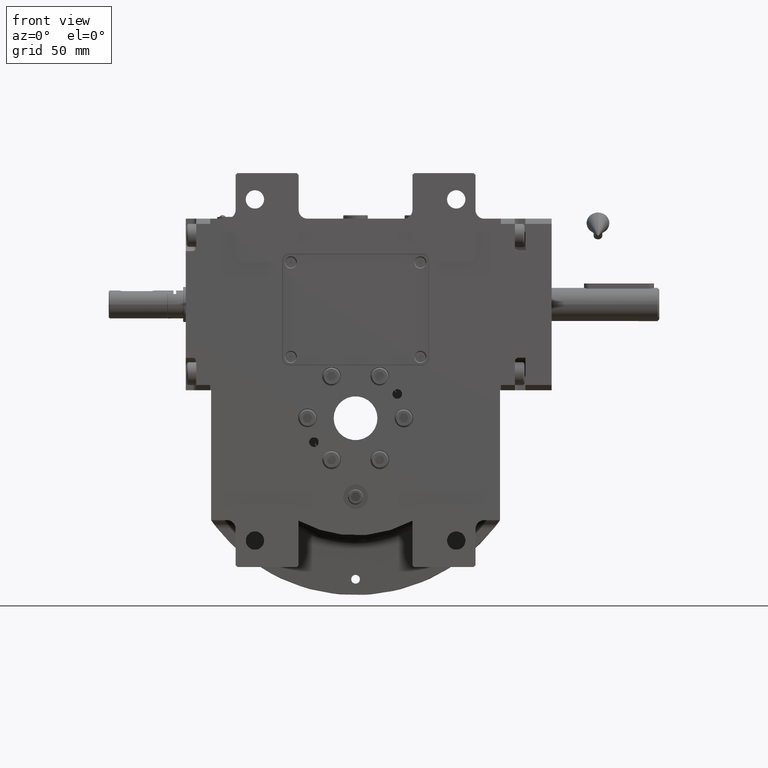
[diagram: clean part render]
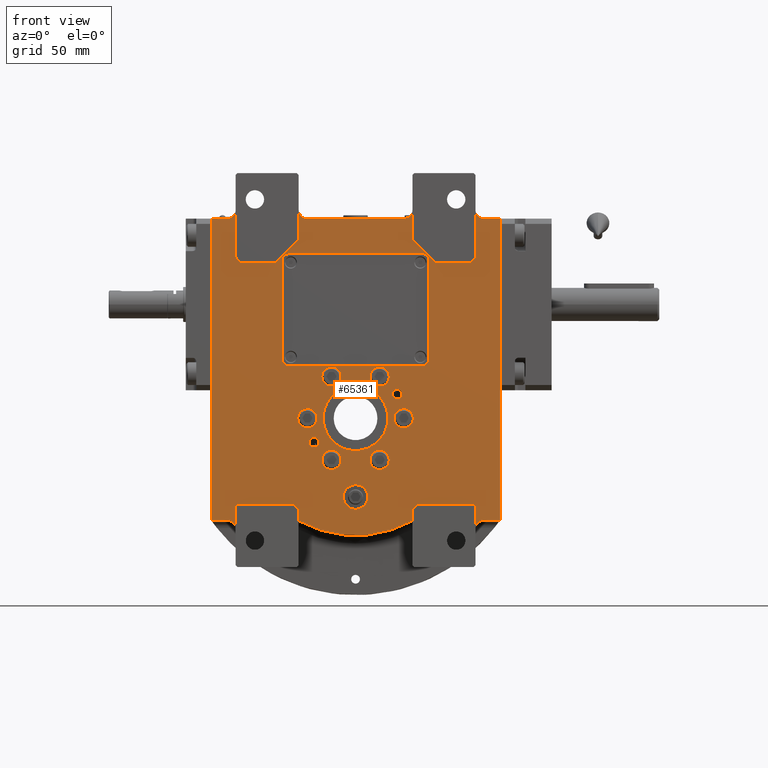
[diagram: same view with one face highlighted and labeled with its STEP entity id]
A machine part, front view. The second image highlights one B-rep face of the part: STEP entity #65361.
In plain terms, the highlighted planar face has unit normal (0, 1, 0).
Its self-contained STEP definition (entity closure, byte-faithful):
#249 = CARTESIAN_POINT ( 'NONE',  ( 68.50000000000000000, -40.50000000000000000, 92.00000000000000000 ) ) ;
#331 = EDGE_CURVE ( 'NONE', #63495, #59903, #56900, .T. ) ;
#789 = CIRCLE ( 'NONE', #65674, 2.749999999999999112 ) ;
#828 = CIRCLE ( 'NONE', #66918, 4.000000000000003553 ) ;
#1184 = ORIENTED_EDGE ( 'NONE', *, *, #65223, .F. ) ;
#1404 = DIRECTION ( 'NONE',  ( 1.387778780781444492E-15, 0.000000000000000000, -1.000000000000000000 ) ) ;
#1618 = ORIENTED_EDGE ( 'NONE', *, *, #6298, .F. ) ;
#1830 = VECTOR ( 'NONE', #69541, 1000.000000000000000 ) ;
#1865 = DIRECTION ( 'NONE',  ( 0.000000000000000000, -1.000000000000000000, 0.000000000000000000 ) ) ;
#2083 = CARTESIAN_POINT ( 'NONE',  ( -32.49999999999934630, -40.50000000000000000, 102.0000000000000000 ) ) ;
#2162 = DIRECTION ( 'NONE',  ( 0.000000000000000000, -1.000000000000000000, 0.000000000000000000 ) ) ;
#2490 = EDGE_CURVE ( 'NONE', #18760, #56068, #5420, .T. ) ;
#2587 = CARTESIAN_POINT ( 'NONE',  ( 32.50000000000000000, -40.50000000000000000, -52.00000000000000000 ) ) ;
#2661 = EDGE_CURVE ( 'NONE', #55045, #7672, #37387, .T. ) ;
#2682 = DIRECTION ( 'NONE',  ( 1.000000000000000000, 0.000000000000000000, 0.000000000000000000 ) ) ;
#2688 = LINE ( 'NONE', #42247, #1830 ) ;
#2777 = CARTESIAN_POINT ( 'NONE',  ( -67.50000000000000000, -40.50000000000000000, -49.00000000000000000 ) ) ;
#2794 = VECTOR ( 'NONE', #8447, 1000.000000000000000 ) ;
#2860 = VERTEX_POINT ( 'NONE', #55471 ) ;
#2961 = CIRCLE ( 'NONE', #20711, 5.500000000000000000 ) ;
#3035 = DIRECTION ( 'NONE',  ( 1.000000000000000000, 0.000000000000000000, 0.000000000000000000 ) ) ;
#3053 = CARTESIAN_POINT ( 'NONE',  ( 23.81569860407205397, -40.50000000000000000, 13.75000000000000000 ) ) ;
#3243 = ORIENTED_EDGE ( 'NONE', *, *, #28140, .T. ) ;
#3444 = CIRCLE ( 'NONE', #63569, 5.000000000000004441 ) ;
#3513 = EDGE_CURVE ( 'NONE', #39877, #10199, #828, .T. ) ;
#3596 = DIRECTION ( 'NONE',  ( 1.000000000000000000, 0.000000000000000000, 0.000000000000000000 ) ) ;
#3610 = CARTESIAN_POINT ( 'NONE',  ( 27.50000000000000000, -40.50000000000000000, -8.881784197001250351E-16 ) ) ;
#3916 = ORIENTED_EDGE ( 'NONE', *, *, #3513, .F. ) ;
#3937 = FACE_BOUND ( 'NONE', #22070, .T. ) ;
#4096 = DIRECTION ( 'NONE',  ( 0.7071067811865474617, 0.000000000000000000, 0.7071067811865474617 ) ) ;
#4146 = CIRCLE ( 'NONE', #13550, 5.500000000000000000 ) ;
#4384 = EDGE_CURVE ( 'NONE', #55318, #62827, #36269, .T. ) ;
#4483 = LINE ( 'NONE', #49558, #35804 ) ;
#4546 = LINE ( 'NONE', #55872, #60930 ) ;
#4555 = CARTESIAN_POINT ( 'NONE',  ( 73.50000000000000000, -40.50000000000000000, 114.0000000000000000 ) ) ;
#4698 = DIRECTION ( 'NONE',  ( 0.000000000000000000, 0.000000000000000000, -1.000000000000000000 ) ) ;
#4887 = EDGE_CURVE ( 'NONE', #5832, #16790, #3444, .T. ) ;
#4951 = VECTOR ( 'NONE', #40234, 1000.000000000000000 ) ;
#5042 = EDGE_CURVE ( 'NONE', #50472, #25782, #31727, .T. ) ;
#5327 = CARTESIAN_POINT ( 'NONE',  ( 27.50000000000000000, -40.50000000000000000, 8.881784197001250351E-16 ) ) ;
#5420 = CIRCLE ( 'NONE', #47885, 7.000000000000000000 ) ;
#5529 = CARTESIAN_POINT ( 'NONE',  ( 8.250000000000000000, -40.50000000000000000, 23.81569860407205397 ) ) ;
#5652 = ORIENTED_EDGE ( 'NONE', *, *, #40051, .T. ) ;
#5832 = VERTEX_POINT ( 'NONE', #56660 ) ;
#5953 = CARTESIAN_POINT ( 'NONE',  ( -32.49999999999934630, -40.50000000000000000, 102.0000000000000000 ) ) ;
#5958 = CARTESIAN_POINT ( 'NONE',  ( -13.75000000000000000, -40.50000000000000000, -23.81569860407205397 ) ) ;
#6051 = VECTOR ( 'NONE', #70390, 1000.000000000000000 ) ;
#6214 = ORIENTED_EDGE ( 'NONE', *, *, #52743, .T. ) ;
#6243 = EDGE_CURVE ( 'NONE', #49355, #43166, #39585, .T. ) ;
#6298 = EDGE_CURVE ( 'NONE', #6772, #16790, #56577, .T. ) ;
#6308 = ORIENTED_EDGE ( 'NONE', *, *, #32444, .F. ) ;
#6429 = DIRECTION ( 'NONE',  ( 0.000000000000000000, 0.000000000000000000, 1.000000000000000000 ) ) ;
#6474 = EDGE_CURVE ( 'NONE', #22342, #34705, #72526, .T. ) ;
#6772 = VERTEX_POINT ( 'NONE', #2083 ) ;
#6781 = DIRECTION ( 'NONE',  ( 0.7071067811865480168, 0.000000000000000000, 0.7071067811865470176 ) ) ;
#6788 = AXIS2_PLACEMENT_3D ( 'NONE', #30639, #47605, #70095 ) ;
#7024 = VERTEX_POINT ( 'NONE', #62510 ) ;
#7427 = AXIS2_PLACEMENT_3D ( 'NONE', #45004, #67517, #16938 ) ;
#7598 = ORIENTED_EDGE ( 'NONE', *, *, #29958, .F. ) ;
#7666 = CARTESIAN_POINT ( 'NONE',  ( -33.00000000000000000, -40.50000000000000000, 1.122594940296405870E-15 ) ) ;
#7672 = VERTEX_POINT ( 'NONE', #66363 ) ;
#7887 = ORIENTED_EDGE ( 'NONE', *, *, #38554, .F. ) ;
#8141 = DIRECTION ( 'NONE',  ( 0.000000000000000000, 1.000000000000000000, 0.000000000000000000 ) ) ;
#8332 = EDGE_CURVE ( 'NONE', #71831, #43996, #2688, .T. ) ;
#8363 = DIRECTION ( 'NONE',  ( 1.000000000000000000, 0.000000000000000000, -6.459479416000907016E-16 ) ) ;
#8403 = LINE ( 'NONE', #19524, #47118 ) ;
#8447 = DIRECTION ( 'NONE',  ( 1.000000000000000000, 0.000000000000000000, 0.000000000000000000 ) ) ;
#8454 = DIRECTION ( 'NONE',  ( -1.000000000000000000, 0.000000000000000000, 0.000000000000000000 ) ) ;
#8614 = LINE ( 'NONE', #54439, #37393 ) ;
#8716 = EDGE_CURVE ( 'NONE', #22308, #13100, #43178, .T. ) ;
#8718 = LINE ( 'NONE', #37547, #6051 ) ;
#8911 = DIRECTION ( 'NONE',  ( 1.000000000000000000, 0.000000000000000000, 0.000000000000000000 ) ) ;
#9142 = DIRECTION ( 'NONE',  ( 1.000000000000000000, 0.000000000000000000, 3.469446951953617344E-15 ) ) ;
#9145 = FACE_BOUND ( 'NONE', #48000, .T. ) ;
#9284 = ORIENTED_EDGE ( 'NONE', *, *, #63777, .F. ) ;
#9326 = VERTEX_POINT ( 'NONE', #14229 ) ;
#9355 = DIRECTION ( 'NONE',  ( 0.000000000000000000, 0.000000000000000000, 1.000000000000000000 ) ) ;
#9997 = ORIENTED_EDGE ( 'NONE', *, *, #43387, .F. ) ;
#10101 = VECTOR ( 'NONE', #32879, 1000.000000000000000 ) ;
#10142 = EDGE_CURVE ( 'NONE', #13100, #22308, #28672, .T. ) ;
#10199 = VERTEX_POINT ( 'NONE', #16709 ) ;
#10243 = CARTESIAN_POINT ( 'NONE',  ( 73.50000000000000000, -40.50000000000000000, 119.0000000000000000 ) ) ;
#10290 = ORIENTED_EDGE ( 'NONE', *, *, #59750, .F. ) ;
#10292 = VERTEX_POINT ( 'NONE', #41431 ) ;
#10535 = AXIS2_PLACEMENT_3D ( 'NONE', #71866, #64932, #3596 ) ;
#10851 = CIRCLE ( 'NONE', #14417, 5.000000000000000888 ) ;
#11159 = VECTOR ( 'NONE', #55265, 1000.000000000000000 ) ;
#11315 = CARTESIAN_POINT ( 'NONE',  ( -27.50000000000000000, -40.50000000000000000, 3.552713678800499352E-15 ) ) ;
#11334 = DIRECTION ( 'NONE',  ( 0.000000000000000000, -1.000000000000000000, 0.000000000000000000 ) ) ;
#11632 = CARTESIAN_POINT ( 'NONE',  ( 26.56569860407205041, -40.50000000000000000, 13.75000000000000000 ) ) ;
#12184 = CARTESIAN_POINT ( 'NONE',  ( 67.50000000000000000, -40.50000000000000000, -49.00000000000000000 ) ) ;
#12261 = ORIENTED_EDGE ( 'NONE', *, *, #49393, .F. ) ;
#12300 = LINE ( 'NONE', #12688, #13351 ) ;
#12340 = EDGE_CURVE ( 'NONE', #42860, #30431, #65602, .T. ) ;
#12438 = AXIS2_PLACEMENT_3D ( 'NONE', #68089, #17527, #40042 ) ;
#12511 = AXIS2_PLACEMENT_3D ( 'NONE', #49798, #61219, #22127 ) ;
#12688 = CARTESIAN_POINT ( 'NONE',  ( -45.49999999999939604, -40.50000000000000000, 89.00000000000000000 ) ) ;
#12797 = CARTESIAN_POINT ( 'NONE',  ( -18.50000000000000000, -40.50000000000000000, 1.581837489976665042E-15 ) ) ;
#12840 = DIRECTION ( 'NONE',  ( -1.734723475976807094E-15, 0.000000000000000000, -1.000000000000000000 ) ) ;
#12847 = EDGE_CURVE ( 'NONE', #40174, #20671, #2961, .T. ) ;
#12918 = ORIENTED_EDGE ( 'NONE', *, *, #32213, .F. ) ;
#13100 = VERTEX_POINT ( 'NONE', #25495 ) ;
#13164 = EDGE_CURVE ( 'NONE', #70912, #46210, #14892, .T. ) ;
#13255 = EDGE_CURVE ( 'NONE', #56068, #18760, #44379, .T. ) ;
#13272 = ORIENTED_EDGE ( 'NONE', *, *, #55995, .F. ) ;
#13351 = VECTOR ( 'NONE', #6781, 1000.000000000000000 ) ;
#13520 = EDGE_CURVE ( 'NONE', #47813, #9326, #8718, .T. ) ;
#13550 = AXIS2_PLACEMENT_3D ( 'NONE', #27865, #48932, #50396 ) ;
#14052 = LINE ( 'NONE', #47318, #18937 ) ;
#14229 = CARTESIAN_POINT ( 'NONE',  ( 82.50000000000000000, -40.50000000000000000, -58.26448317800490173 ) ) ;
#14417 = AXIS2_PLACEMENT_3D ( 'NONE', #52945, #19701, #47037 ) ;
#14743 = CARTESIAN_POINT ( 'NONE',  ( 42.00000000000000000, -40.50000000000000000, 34.00000000000000000 ) ) ;
#14892 = CIRCLE ( 'NONE', #16111, 3.999999999999996447 ) ;
#15592 = CARTESIAN_POINT ( 'NONE',  ( -68.50000000000000000, -40.50000000000000000, -50.00000000000000000 ) ) ;
#15666 = EDGE_CURVE ( 'NONE', #19869, #41108, #28760, .T. ) ;
#15787 = PLANE ( 'NONE',  #10535 ) ;
#15806 = CIRCLE ( 'NONE', #67707, 66.99999999999998579 ) ;
#15842 = DIRECTION ( 'NONE',  ( 1.000000000000000000, 0.000000000000000000, 0.000000000000000000 ) ) ;
#15874 = ORIENTED_EDGE ( 'NONE', *, *, #41151, .T. ) ;
#16033 = VERTEX_POINT ( 'NONE', #34128 ) ;
#16052 = VECTOR ( 'NONE', #47745, 1000.000000000000000 ) ;
#16111 = AXIS2_PLACEMENT_3D ( 'NONE', #20304, #59399, #48366 ) ;
#16188 = EDGE_CURVE ( 'NONE', #61700, #49589, #60271, .T. ) ;
#16197 = CARTESIAN_POINT ( 'NONE',  ( -26.56569860407205041, -40.50000000000000000, -13.75000000000000000 ) ) ;
#16338 = CARTESIAN_POINT ( 'NONE',  ( -32.50000000000000000, -40.50000000000000000, -52.00000000000000000 ) ) ;
#16709 = CARTESIAN_POINT ( 'NONE',  ( -42.00000000000000000, -40.50000000000000000, 90.00000000000000000 ) ) ;
#16723 = ORIENTED_EDGE ( 'NONE', *, *, #4887, .T. ) ;
#16790 = VERTEX_POINT ( 'NONE', #37307 ) ;
#16922 = EDGE_CURVE ( 'NONE', #25782, #39877, #39878, .T. ) ;
#16938 = DIRECTION ( 'NONE',  ( -1.000000000000000000, 0.000000000000000000, 0.000000000000000000 ) ) ;
#17327 = DIRECTION ( 'NONE',  ( 0.000000000000000000, -1.000000000000000000, 0.000000000000000000 ) ) ;
#17527 = DIRECTION ( 'NONE',  ( 0.000000000000000000, -1.000000000000000000, 0.000000000000000000 ) ) ;
#17615 = CARTESIAN_POINT ( 'NONE',  ( -73.50000000000000000, -40.50000000000000000, -58.26448317800490173 ) ) ;
#17917 = LINE ( 'NONE', #63324, #69074 ) ;
#17923 = EDGE_CURVE ( 'NONE', #29740, #50472, #14052, .T. ) ;
#17986 = LINE ( 'NONE', #52312, #61610 ) ;
#18366 = AXIS2_PLACEMENT_3D ( 'NONE', #41082, #8141, #69790 ) ;
#18373 = AXIS2_PLACEMENT_3D ( 'NONE', #71772, #21245, #66273 ) ;
#18401 = CARTESIAN_POINT ( 'NONE',  ( -68.50000000000000000, -40.50000000000000000, 92.00000000000000000 ) ) ;
#18731 = EDGE_CURVE ( 'NONE', #48662, #35455, #66152, .T. ) ;
#18760 = VERTEX_POINT ( 'NONE', #28693 ) ;
#18931 = VERTEX_POINT ( 'NONE', #12797 ) ;
#18937 = VECTOR ( 'NONE', #58755, 1000.000000000000000 ) ;
#19166 = DIRECTION ( 'NONE',  ( 1.000000000000000000, 0.000000000000000000, 0.000000000000000000 ) ) ;
#19318 = ORIENTED_EDGE ( 'NONE', *, *, #2490, .F. ) ;
#19524 = CARTESIAN_POINT ( 'NONE',  ( -35.50000000000000000, -40.50000000000000000, -49.00000000000000000 ) ) ;
#19587 = EDGE_LOOP ( 'NONE', ( #70898, #19318 ) ) ;
#19701 = DIRECTION ( 'NONE',  ( 0.000000000000000000, 1.000000000000000000, 0.000000000000000000 ) ) ;
#19712 = CARTESIAN_POINT ( 'NONE',  ( 21.06569860407205041, -40.50000000000000000, 13.75000000000000000 ) ) ;
#19744 = AXIS2_PLACEMENT_3D ( 'NONE', #69268, #43029, #21968 ) ;
#19869 = VERTEX_POINT ( 'NONE', #52612 ) ;
#19896 = ORIENTED_EDGE ( 'NONE', *, *, #36826, .F. ) ;
#19947 = LINE ( 'NONE', #24413, #2794 ) ;
#19980 = CARTESIAN_POINT ( 'NONE',  ( 67.50000000000000000, -40.50000000000000000, -49.00000000000000000 ) ) ;
#20253 = CARTESIAN_POINT ( 'NONE',  ( 38.00000000000000000, -40.50000000000000000, 90.00000000000000000 ) ) ;
#20257 = FACE_BOUND ( 'NONE', #46123, .T. ) ;
#20304 = CARTESIAN_POINT ( 'NONE',  ( -38.00000000000000000, -40.50000000000000000, 34.00000000000000000 ) ) ;
#20671 = VERTEX_POINT ( 'NONE', #5529 ) ;
#20710 = CARTESIAN_POINT ( 'NONE',  ( -1.065814103640149963E-14, -40.50000000000000000, -4.263256414560599853E-14 ) ) ;
#20711 = AXIS2_PLACEMENT_3D ( 'NONE', #39919, #56886, #33999 ) ;
#20974 = VERTEX_POINT ( 'NONE', #42441 ) ;
#21245 = DIRECTION ( 'NONE',  ( 0.000000000000000000, -1.000000000000000000, 0.000000000000000000 ) ) ;
#21495 = CARTESIAN_POINT ( 'NONE',  ( -68.50000000000000000, -40.50000000000000000, -50.00000000000000000 ) ) ;
#21764 = AXIS2_PLACEMENT_3D ( 'NONE', #67487, #11334, #32456 ) ;
#21779 = CARTESIAN_POINT ( 'NONE',  ( 8.250000000000000000, -40.50000000000000000, -23.81569860407205397 ) ) ;
#21968 = DIRECTION ( 'NONE',  ( 1.000000000000000000, 0.000000000000000000, -6.308085367188389255E-16 ) ) ;
#22070 = EDGE_LOOP ( 'NONE', ( #51061, #49528 ) ) ;
#22088 = ORIENTED_EDGE ( 'NONE', *, *, #13164, .F. ) ;
#22127 = DIRECTION ( 'NONE',  ( 1.000000000000000000, 0.000000000000000000, 0.000000000000000000 ) ) ;
#22261 = EDGE_CURVE ( 'NONE', #18931, #32991, #67699, .T. ) ;
#22262 = DIRECTION ( 'NONE',  ( 0.000000000000000000, 0.000000000000000000, 1.000000000000000000 ) ) ;
#22280 = ORIENTED_EDGE ( 'NONE', *, *, #8332, .F. ) ;
#22308 = VERTEX_POINT ( 'NONE', #26922 ) ;
#22342 = VERTEX_POINT ( 'NONE', #16197 ) ;
#22350 = CARTESIAN_POINT ( 'NONE',  ( -68.50000000000000000, -40.50000000000000000, 119.0000000000000000 ) ) ;
#22527 = VERTEX_POINT ( 'NONE', #249 ) ;
#22826 = DIRECTION ( 'NONE',  ( -1.000000000000000000, 0.000000000000000000, -1.261617073437678245E-15 ) ) ;
#22835 = CARTESIAN_POINT ( 'NONE',  ( -23.81569860407205397, -40.50000000000000000, -13.75000000000000000 ) ) ;
#22983 = DIRECTION ( 'NONE',  ( 0.000000000000000000, -1.000000000000000000, 0.000000000000000000 ) ) ;
#23086 = VECTOR ( 'NONE', #8454, 1000.000000000000000 ) ;
#23231 = DIRECTION ( 'NONE',  ( 0.000000000000000000, -1.000000000000000000, 0.000000000000000000 ) ) ;
#23256 = CARTESIAN_POINT ( 'NONE',  ( -32.50000000000000000, -40.50000000000000000, -58.58967485828879518 ) ) ;
#23326 = ORIENTED_EDGE ( 'NONE', *, *, #62364, .T. ) ;
#23556 = EDGE_CURVE ( 'NONE', #9326, #52677, #54273, .T. ) ;
#24067 = DIRECTION ( 'NONE',  ( 0.7071067811865474617, 0.000000000000000000, 0.7071067811865474617 ) ) ;
#24285 = VECTOR ( 'NONE', #2682, 1000.000000000000000 ) ;
#24413 = CARTESIAN_POINT ( 'NONE',  ( -38.00000000000000000, -40.50000000000000000, 30.00000000000000000 ) ) ;
#24754 = CARTESIAN_POINT ( 'NONE',  ( 73.50000000000000000, -40.50000000000000000, -58.26448317800490173 ) ) ;
#24764 = LINE ( 'NONE', #46922, #36039 ) ;
#24873 = CARTESIAN_POINT ( 'NONE',  ( -73.50000000000000000, -40.50000000000000000, -63.26448317800490173 ) ) ;
#24884 = LINE ( 'NONE', #70944, #39205 ) ;
#25087 = ORIENTED_EDGE ( 'NONE', *, *, #6243, .F. ) ;
#25394 = DIRECTION ( 'NONE',  ( 0.000000000000000000, -1.000000000000000000, 0.000000000000000000 ) ) ;
#25439 = DIRECTION ( 'NONE',  ( -1.000000000000000000, 0.000000000000000000, 0.000000000000000000 ) ) ;
#25495 = CARTESIAN_POINT ( 'NONE',  ( -19.25000000000000000, -40.50000000000000000, -23.81569860407205397 ) ) ;
#25647 = VERTEX_POINT ( 'NONE', #43086 ) ;
#25650 = ORIENTED_EDGE ( 'NONE', *, *, #13520, .F. ) ;
#25782 = VERTEX_POINT ( 'NONE', #28279 ) ;
#25982 = VERTEX_POINT ( 'NONE', #59592 ) ;
#26170 = FACE_BOUND ( 'NONE', #46006, .T. ) ;
#26474 = CARTESIAN_POINT ( 'NONE',  ( -42.00000000000000000, -40.50000000000000000, 90.00000000000000000 ) ) ;
#26479 = CIRCLE ( 'NONE', #18373, 5.500000000000000000 ) ;
#26713 = EDGE_CURVE ( 'NONE', #34705, #22342, #789, .T. ) ;
#26894 = FACE_BOUND ( 'NONE', #27236, .T. ) ;
#26922 = CARTESIAN_POINT ( 'NONE',  ( -8.250000000000000000, -40.50000000000000000, -23.81569860407205397 ) ) ;
#27018 = CARTESIAN_POINT ( 'NONE',  ( -21.06569860407205041, -40.50000000000000000, -13.75000000000000000 ) ) ;
#27054 = DIRECTION ( 'NONE',  ( 0.000000000000000000, 1.000000000000000000, 0.000000000000000000 ) ) ;
#27106 = CIRCLE ( 'NONE', #35327, 4.000000000000000000 ) ;
#27236 = EDGE_LOOP ( 'NONE', ( #12918, #6308 ) ) ;
#27304 = LINE ( 'NONE', #60870, #51846 ) ;
#27496 = ORIENTED_EDGE ( 'NONE', *, *, #15666, .F. ) ;
#27511 = ORIENTED_EDGE ( 'NONE', *, *, #16188, .T. ) ;
#27865 = CARTESIAN_POINT ( 'NONE',  ( 13.75000000000000000, -40.50000000000000000, -23.81569860407205397 ) ) ;
#27905 = EDGE_CURVE ( 'NONE', #55045, #41823, #33659, .T. ) ;
#28070 = DIRECTION ( 'NONE',  ( -0.4850746268656720428, 0.000000000000000000, -0.8744727590789371785 ) ) ;
#28140 = EDGE_CURVE ( 'NONE', #38025, #20974, #62257, .T. ) ;
#28279 = CARTESIAN_POINT ( 'NONE',  ( 38.00000000000000000, -40.50000000000000000, 94.00000000000000000 ) ) ;
#28672 = CIRCLE ( 'NONE', #42823, 5.500000000000000000 ) ;
#28693 = CARTESIAN_POINT ( 'NONE',  ( -7.000000000000000000, -40.50000000000000000, -45.00000000000000000 ) ) ;
#28760 = LINE ( 'NONE', #23256, #10101 ) ;
#28857 = ORIENTED_EDGE ( 'NONE', *, *, #38453, .T. ) ;
#28971 = ORIENTED_EDGE ( 'NONE', *, *, #10142, .F. ) ;
#29341 = ORIENTED_EDGE ( 'NONE', *, *, #4384, .F. ) ;
#29436 = DIRECTION ( 'NONE',  ( 0.7071067811865474617, 0.000000000000000000, -0.7071067811865474617 ) ) ;
#29504 = LINE ( 'NONE', #35742, #35151 ) ;
#29740 = VERTEX_POINT ( 'NONE', #14743 ) ;
#29958 = EDGE_CURVE ( 'NONE', #62827, #55318, #49938, .T. ) ;
#30408 = DIRECTION ( 'NONE',  ( 0.000000000000000000, 0.000000000000000000, 1.000000000000000000 ) ) ;
#30431 = VERTEX_POINT ( 'NONE', #60787 ) ;
#30462 = AXIS2_PLACEMENT_3D ( 'NONE', #10243, #56042, #4698 ) ;
#30627 = EDGE_CURVE ( 'NONE', #5832, #25982, #44015, .T. ) ;
#30639 = CARTESIAN_POINT ( 'NONE',  ( 73.50000000000000000, -40.50000000000000000, -63.26448317800490173 ) ) ;
#30708 = EDGE_CURVE ( 'NONE', #22527, #70131, #4483, .T. ) ;
#31110 = DIRECTION ( 'NONE',  ( -0.7071067811865474617, 0.000000000000000000, -0.7071067811865474617 ) ) ;
#31118 = DIRECTION ( 'NONE',  ( 0.000000000000000000, 0.000000000000000000, -1.000000000000000000 ) ) ;
#31342 = DIRECTION ( 'NONE',  ( 1.000000000000000000, 0.000000000000000000, 1.614869854000229219E-16 ) ) ;
#31380 = CARTESIAN_POINT ( 'NONE',  ( 82.50000000000000000, -40.50000000000000000, -58.26448317800490173 ) ) ;
#31610 = VERTEX_POINT ( 'NONE', #53119 ) ;
#31727 = CIRCLE ( 'NONE', #32948, 3.999999999999996447 ) ;
#32069 = VERTEX_POINT ( 'NONE', #64831 ) ;
#32213 = EDGE_CURVE ( 'NONE', #36406, #56620, #4146, .T. ) ;
#32331 = ORIENTED_EDGE ( 'NONE', *, *, #30627, .F. ) ;
#32444 = EDGE_CURVE ( 'NONE', #56620, #36406, #37230, .T. ) ;
#32456 = DIRECTION ( 'NONE',  ( -1.000000000000000000, 0.000000000000000000, -3.840771544649190407E-16 ) ) ;
#32664 = EDGE_CURVE ( 'NONE', #10292, #25647, #17917, .T. ) ;
#32740 = ORIENTED_EDGE ( 'NONE', *, *, #45937, .T. ) ;
#32879 = DIRECTION ( 'NONE',  ( 0.000000000000000000, 0.000000000000000000, 1.000000000000000000 ) ) ;
#32948 = AXIS2_PLACEMENT_3D ( 'NONE', #20253, #65281, #9142 ) ;
#32991 = VERTEX_POINT ( 'NONE', #51811 ) ;
#33011 = DIRECTION ( 'NONE',  ( -0.7071067811865474617, 0.000000000000000000, 0.7071067811865474617 ) ) ;
#33143 = AXIS2_PLACEMENT_3D ( 'NONE', #3610, #47973, #31342 ) ;
#33659 = LINE ( 'NONE', #21495, #50490 ) ;
#33896 = ORIENTED_EDGE ( 'NONE', *, *, #41702, .T. ) ;
#33999 = DIRECTION ( 'NONE',  ( 1.000000000000000000, 0.000000000000000000, 0.000000000000000000 ) ) ;
#34030 = CARTESIAN_POINT ( 'NONE',  ( 68.50000000000000000, -40.50000000000000000, -63.26448317800490173 ) ) ;
#34128 = CARTESIAN_POINT ( 'NONE',  ( 68.50000000000000000, -40.50000000000000000, -50.00000000000000000 ) ) ;
#34225 = EDGE_CURVE ( 'NONE', #49355, #67548, #4546, .T. ) ;
#34286 = CARTESIAN_POINT ( 'NONE',  ( 0.000000000000000000, -40.50000000000000000, 1.776356839400249676E-15 ) ) ;
#34554 = CARTESIAN_POINT ( 'NONE',  ( 82.50000000000000000, -40.50000000000000000, 114.0000000000000000 ) ) ;
#34613 = EDGE_CURVE ( 'NONE', #38025, #47813, #36613, .T. ) ;
#34631 = CARTESIAN_POINT ( 'NONE',  ( -22.00000000000000000, -40.50000000000000000, 5.329499687483060376E-16 ) ) ;
#34642 = ORIENTED_EDGE ( 'NONE', *, *, #27905, .T. ) ;
#34674 = DIRECTION ( 'NONE',  ( 0.000000000000000000, -1.000000000000000000, 0.000000000000000000 ) ) ;
#34705 = VERTEX_POINT ( 'NONE', #27018 ) ;
#35151 = VECTOR ( 'NONE', #63828, 1000.000000000000000 ) ;
#35327 = AXIS2_PLACEMENT_3D ( 'NONE', #50902, #23231, #12840 ) ;
#35401 = DIRECTION ( 'NONE',  ( 0.000000000000000000, 1.000000000000000000, 0.000000000000000000 ) ) ;
#35455 = VERTEX_POINT ( 'NONE', #34631 ) ;
#35575 = CARTESIAN_POINT ( 'NONE',  ( -35.50000000000000000, -40.50000000000000000, -49.00000000000000000 ) ) ;
#35624 = EDGE_CURVE ( 'NONE', #40002, #16033, #70019, .T. ) ;
#35665 = ORIENTED_EDGE ( 'NONE', *, *, #58729, .F. ) ;
#35742 = CARTESIAN_POINT ( 'NONE',  ( 45.49999999999939604, -40.50000000000000000, 89.00000000000000000 ) ) ;
#35804 = VECTOR ( 'NONE', #31110, 1000.000000000000114 ) ;
#36039 = VECTOR ( 'NONE', #40269, 1000.000000000000114 ) ;
#36269 = CIRCLE ( 'NONE', #19744, 5.500000000000000000 ) ;
#36280 = VECTOR ( 'NONE', #8911, 1000.000000000000000 ) ;
#36406 = VERTEX_POINT ( 'NONE', #56184 ) ;
#36451 = CARTESIAN_POINT ( 'NONE',  ( 68.50000000000000000, -40.50000000000000000, -63.26448317800490173 ) ) ;
#36557 = LINE ( 'NONE', #2587, #52102 ) ;
#36613 = LINE ( 'NONE', #54007, #36280 ) ;
#36647 = ORIENTED_EDGE ( 'NONE', *, *, #58114, .T. ) ;
#36826 = EDGE_CURVE ( 'NONE', #32991, #18931, #72859, .T. ) ;
#36829 = VERTEX_POINT ( 'NONE', #46105 ) ;
#37007 = LINE ( 'NONE', #35575, #49764 ) ;
#37216 = FACE_BOUND ( 'NONE', #19587, .T. ) ;
#37230 = CIRCLE ( 'NONE', #12438, 5.500000000000000000 ) ;
#37307 = CARTESIAN_POINT ( 'NONE',  ( -32.49999999999934630, -40.50000000000000000, 119.0000000000000000 ) ) ;
#37387 = LINE ( 'NONE', #15592, #16052 ) ;
#37393 = VECTOR ( 'NONE', #9355, 1000.000000000000000 ) ;
#37406 = ORIENTED_EDGE ( 'NONE', *, *, #16922, .F. ) ;
#37547 = CARTESIAN_POINT ( 'NONE',  ( 82.50000000000000000, -40.50000000000000000, 114.0000000000000000 ) ) ;
#37550 = ORIENTED_EDGE ( 'NONE', *, *, #23556, .F. ) ;
#37925 = CARTESIAN_POINT ( 'NONE',  ( -68.50000000000000000, -40.50000000000000000, -50.00000000000000000 ) ) ;
#38025 = VERTEX_POINT ( 'NONE', #4555 ) ;
#38361 = DIRECTION ( 'NONE',  ( 0.000000000000000000, 1.000000000000000000, 0.000000000000000000 ) ) ;
#38453 = EDGE_CURVE ( 'NONE', #10292, #64310, #27304, .T. ) ;
#38525 = CARTESIAN_POINT ( 'NONE',  ( 42.00000000000000000, -40.50000000000000000, 90.00000000000000000 ) ) ;
#38554 = EDGE_CURVE ( 'NONE', #31610, #29740, #27106, .T. ) ;
#38587 = CARTESIAN_POINT ( 'NONE',  ( -42.00000000000000000, -40.50000000000000000, 34.00000000000000000 ) ) ;
#38707 = DIRECTION ( 'NONE',  ( -1.000000000000000000, 0.000000000000000000, -6.459479416000907016E-16 ) ) ;
#38878 = ORIENTED_EDGE ( 'NONE', *, *, #40910, .T. ) ;
#39205 = VECTOR ( 'NONE', #31118, 1000.000000000000000 ) ;
#39585 = LINE ( 'NONE', #67288, #48922 ) ;
#39594 = DIRECTION ( 'NONE',  ( -1.000000000000000000, 0.000000000000000000, -6.308085367188389255E-16 ) ) ;
#39877 = VERTEX_POINT ( 'NONE', #49205 ) ;
#39878 = LINE ( 'NONE', #61615, #4951 ) ;
#39919 = CARTESIAN_POINT ( 'NONE',  ( 13.75000000000000000, -40.50000000000000000, 23.81569860407205397 ) ) ;
#40002 = VERTEX_POINT ( 'NONE', #34030 ) ;
#40027 = CARTESIAN_POINT ( 'NONE',  ( -19.25000000000000000, -40.50000000000000000, 23.81569860407205397 ) ) ;
#40042 = DIRECTION ( 'NONE',  ( -1.000000000000000000, 0.000000000000000000, 0.000000000000000000 ) ) ;
#40051 = EDGE_CURVE ( 'NONE', #71831, #59903, #36557, .T. ) ;
#40174 = VERTEX_POINT ( 'NONE', #60516 ) ;
#40234 = DIRECTION ( 'NONE',  ( -1.000000000000000000, 0.000000000000000000, 0.000000000000000000 ) ) ;
#40269 = DIRECTION ( 'NONE',  ( 0.7071067811865474617, 0.000000000000000000, -0.7071067811865474617 ) ) ;
#40910 = EDGE_CURVE ( 'NONE', #32069, #41108, #37007, .T. ) ;
#41045 = DIRECTION ( 'NONE',  ( -1.000000000000000000, 0.000000000000000000, 0.000000000000000000 ) ) ;
#41082 = CARTESIAN_POINT ( 'NONE',  ( -23.81569860407205397, -40.50000000000000000, -13.75000000000000000 ) ) ;
#41108 = VERTEX_POINT ( 'NONE', #16338 ) ;
#41151 = EDGE_CURVE ( 'NONE', #65958, #36829, #67311, .T. ) ;
#41233 = CARTESIAN_POINT ( 'NONE',  ( -8.250000000000000000, -40.50000000000000000, 23.81569860407205397 ) ) ;
#41264 = CARTESIAN_POINT ( 'NONE',  ( -45.49999999999939604, -40.50000000000000000, 89.00000000000000000 ) ) ;
#41431 = CARTESIAN_POINT ( 'NONE',  ( -82.50000000000000000, -40.50000000000000000, -58.26448317800490173 ) ) ;
#41494 = DIRECTION ( 'NONE',  ( 0.000000000000000000, -1.000000000000000000, 0.000000000000000000 ) ) ;
#41702 = EDGE_CURVE ( 'NONE', #63495, #16033, #17986, .T. ) ;
#41823 = VERTEX_POINT ( 'NONE', #2777 ) ;
#42217 = CIRCLE ( 'NONE', #49270, 5.500000000000001776 ) ;
#42219 = DIRECTION ( 'NONE',  ( 0.000000000000000000, 1.000000000000000000, 0.000000000000000000 ) ) ;
#42247 = CARTESIAN_POINT ( 'NONE',  ( 32.50000000000000000, -40.50000000000000000, -52.00000000000000000 ) ) ;
#42354 = DIRECTION ( 'NONE',  ( 0.000000000000000000, 0.000000000000000000, -1.000000000000000000 ) ) ;
#42441 = CARTESIAN_POINT ( 'NONE',  ( 68.50000000000000000, -40.50000000000000000, 119.0000000000000000 ) ) ;
#42716 = EDGE_CURVE ( 'NONE', #67808, #7024, #64975, .T. ) ;
#42823 = AXIS2_PLACEMENT_3D ( 'NONE', #5958, #22983, #39594 ) ;
#42860 = VERTEX_POINT ( 'NONE', #70073 ) ;
#42941 = DIRECTION ( 'NONE',  ( 0.7071067811865474617, 0.000000000000000000, -0.7071067811865474617 ) ) ;
#43029 = DIRECTION ( 'NONE',  ( 0.000000000000000000, -1.000000000000000000, 0.000000000000000000 ) ) ;
#43086 = CARTESIAN_POINT ( 'NONE',  ( -82.50000000000000000, -40.50000000000000000, 114.0000000000000000 ) ) ;
#43166 = VERTEX_POINT ( 'NONE', #41264 ) ;
#43178 = CIRCLE ( 'NONE', #71427, 5.500000000000000000 ) ;
#43320 = LINE ( 'NONE', #53666, #24285 ) ;
#43364 = CARTESIAN_POINT ( 'NONE',  ( 32.50000000000000000, -40.50000000000000000, -52.00000000000000000 ) ) ;
#43387 = EDGE_CURVE ( 'NONE', #7024, #67808, #47210, .T. ) ;
#43625 = ORIENTED_EDGE ( 'NONE', *, *, #71823, .F. ) ;
#43945 = CARTESIAN_POINT ( 'NONE',  ( -27.49999999999934630, -40.50000000000000000, 119.0000000000000000 ) ) ;
#43996 = VERTEX_POINT ( 'NONE', #49953 ) ;
#44015 = LINE ( 'NONE', #48473, #58213 ) ;
#44379 = CIRCLE ( 'NONE', #12511, 7.000000000000000000 ) ;
#45004 = CARTESIAN_POINT ( 'NONE',  ( -13.75000000000000000, -40.50000000000000000, 23.81569860407205397 ) ) ;
#45608 = ORIENTED_EDGE ( 'NONE', *, *, #32664, .F. ) ;
#45937 = EDGE_CURVE ( 'NONE', #49589, #61700, #62782, .T. ) ;
#46006 = EDGE_LOOP ( 'NONE', ( #62743, #22088, #63597, #3916, #37406, #63448, #71158, #7887 ) ) ;
#46105 = CARTESIAN_POINT ( 'NONE',  ( -73.50000000000000000, -40.50000000000000000, 114.0000000000000000 ) ) ;
#46123 = EDGE_LOOP ( 'NONE', ( #67314, #9997 ) ) ;
#46210 = VERTEX_POINT ( 'NONE', #71370 ) ;
#46290 = CARTESIAN_POINT ( 'NONE',  ( 4.440892098500625176E-16, -40.50000000000000000, -45.00000000000000000 ) ) ;
#46922 = CARTESIAN_POINT ( 'NONE',  ( 32.49999999999934630, -40.50000000000000000, 102.0000000000000000 ) ) ;
#47037 = DIRECTION ( 'NONE',  ( 1.000000000000000000, 0.000000000000000000, -2.775557561562890957E-15 ) ) ;
#47118 = VECTOR ( 'NONE', #25439, 1000.000000000000000 ) ;
#47210 = CIRCLE ( 'NONE', #66080, 5.500000000000001776 ) ;
#47318 = CARTESIAN_POINT ( 'NONE',  ( 42.00000000000000000, -40.50000000000000000, 34.00000000000000000 ) ) ;
#47547 = ORIENTED_EDGE ( 'NONE', *, *, #30708, .T. ) ;
#47605 = DIRECTION ( 'NONE',  ( 0.000000000000000000, 1.000000000000000000, 0.000000000000000000 ) ) ;
#47745 = DIRECTION ( 'NONE',  ( 0.000000000000000000, 0.000000000000000000, -1.000000000000000000 ) ) ;
#47753 = DIRECTION ( 'NONE',  ( 1.000000000000000000, 0.000000000000000000, 0.000000000000000000 ) ) ;
#47813 = VERTEX_POINT ( 'NONE', #34554 ) ;
#47829 = ORIENTED_EDGE ( 'NONE', *, *, #22261, .F. ) ;
#47885 = AXIS2_PLACEMENT_3D ( 'NONE', #46290, #41494, #52204 ) ;
#47960 = ORIENTED_EDGE ( 'NONE', *, *, #34225, .T. ) ;
#47973 = DIRECTION ( 'NONE',  ( 0.000000000000000000, -1.000000000000000000, 0.000000000000000000 ) ) ;
#48000 = EDGE_LOOP ( 'NONE', ( #64654, #12261 ) ) ;
#48159 = AXIS2_PLACEMENT_3D ( 'NONE', #34286, #17327, #61950 ) ;
#48323 = FACE_BOUND ( 'NONE', #58665, .T. ) ;
#48366 = DIRECTION ( 'NONE',  ( -1.000000000000000000, 0.000000000000000000, 0.000000000000000000 ) ) ;
#48473 = CARTESIAN_POINT ( 'NONE',  ( -27.49999999999934630, -40.50000000000000000, 114.0000000000000000 ) ) ;
#48662 = VERTEX_POINT ( 'NONE', #7666 ) ;
#48669 = FACE_BOUND ( 'NONE', #64147, .T. ) ;
#48670 = AXIS2_PLACEMENT_3D ( 'NONE', #50546, #38361, #22826 ) ;
#48860 = ORIENTED_EDGE ( 'NONE', *, *, #2661, .F. ) ;
#48922 = VECTOR ( 'NONE', #51408, 1000.000000000000000 ) ;
#48932 = DIRECTION ( 'NONE',  ( 0.000000000000000000, -1.000000000000000000, 0.000000000000000000 ) ) ;
#49205 = CARTESIAN_POINT ( 'NONE',  ( -38.00000000000000000, -40.50000000000000000, 94.00000000000000000 ) ) ;
#49270 = AXIS2_PLACEMENT_3D ( 'NONE', #70742, #25394, #8363 ) ;
#49355 = VERTEX_POINT ( 'NONE', #66635 ) ;
#49393 = EDGE_CURVE ( 'NONE', #20671, #40174, #26479, .T. ) ;
#49406 = FACE_BOUND ( 'NONE', #72537, .T. ) ;
#49528 = ORIENTED_EDGE ( 'NONE', *, *, #6474, .T. ) ;
#49558 = CARTESIAN_POINT ( 'NONE',  ( 68.50000000000000000, -40.50000000000000000, 92.00000000000000000 ) ) ;
#49589 = VERTEX_POINT ( 'NONE', #19712 ) ;
#49656 = EDGE_CURVE ( 'NONE', #25647, #36829, #43320, .T. ) ;
#49764 = VECTOR ( 'NONE', #42941, 1000.000000000000114 ) ;
#49798 = CARTESIAN_POINT ( 'NONE',  ( -4.440892098500625176E-16, -40.50000000000000000, -45.00000000000000000 ) ) ;
#49938 = CIRCLE ( 'NONE', #7427, 5.500000000000000000 ) ;
#49953 = CARTESIAN_POINT ( 'NONE',  ( 32.50000000000000000, -40.50000000000000000, -58.58967485828879518 ) ) ;
#50045 = DIRECTION ( 'NONE',  ( -1.000000000000000000, 0.000000000000000000, -1.614869854000229219E-16 ) ) ;
#50142 = EDGE_LOOP ( 'NONE', ( #27511, #32740 ) ) ;
#50335 = AXIS2_PLACEMENT_3D ( 'NONE', #24873, #42219, #30408 ) ;
#50396 = DIRECTION ( 'NONE',  ( 1.000000000000000000, 0.000000000000000000, 0.000000000000000000 ) ) ;
#50407 = CIRCLE ( 'NONE', #6788, 5.000000000000004441 ) ;
#50472 = VERTEX_POINT ( 'NONE', #38525 ) ;
#50490 = VECTOR ( 'NONE', #4096, 1000.000000000000114 ) ;
#50546 = CARTESIAN_POINT ( 'NONE',  ( 23.81569860407205397, -40.50000000000000000, 13.75000000000000000 ) ) ;
#50902 = CARTESIAN_POINT ( 'NONE',  ( 38.00000000000000000, -40.50000000000000000, 34.00000000000000000 ) ) ;
#51003 = CARTESIAN_POINT ( 'NONE',  ( -38.00000000000000000, -40.50000000000000000, 90.00000000000000000 ) ) ;
#51061 = ORIENTED_EDGE ( 'NONE', *, *, #26713, .T. ) ;
#51259 = DIRECTION ( 'NONE',  ( 0.000000000000000000, 1.000000000000000000, 0.000000000000000000 ) ) ;
#51408 = DIRECTION ( 'NONE',  ( 1.000000000000000000, 0.000000000000000000, 0.000000000000000000 ) ) ;
#51500 = CIRCLE ( 'NONE', #50335, 4.999999999999997335 ) ;
#51811 = CARTESIAN_POINT ( 'NONE',  ( 18.50000000000000000, -40.50000000000000000, 8.266386305024620034E-16 ) ) ;
#51846 = VECTOR ( 'NONE', #73011, 1000.000000000000000 ) ;
#52102 = VECTOR ( 'NONE', #24067, 1000.000000000000114 ) ;
#52204 = DIRECTION ( 'NONE',  ( -1.000000000000000000, 0.000000000000000000, 0.000000000000000000 ) ) ;
#52312 = CARTESIAN_POINT ( 'NONE',  ( 67.50000000000000000, -40.50000000000000000, -49.00000000000000000 ) ) ;
#52612 = CARTESIAN_POINT ( 'NONE',  ( -32.50000000000000000, -40.50000000000000000, -58.58967485828879518 ) ) ;
#52677 = VERTEX_POINT ( 'NONE', #24754 ) ;
#52743 = EDGE_CURVE ( 'NONE', #40002, #52677, #50407, .T. ) ;
#52945 = CARTESIAN_POINT ( 'NONE',  ( 27.49999999999934630, -40.50000000000000000, 119.0000000000000000 ) ) ;
#53119 = CARTESIAN_POINT ( 'NONE',  ( 38.00000000000000000, -40.50000000000000000, 30.00000000000000000 ) ) ;
#53194 = AXIS2_PLACEMENT_3D ( 'NONE', #11315, #72962, #38707 ) ;
#53295 = CARTESIAN_POINT ( 'NONE',  ( 7.000000000000000000, -40.50000000000000000, -45.00000000000000000 ) ) ;
#53666 = CARTESIAN_POINT ( 'NONE',  ( -82.50000000000000000, -40.50000000000000000, 114.0000000000000000 ) ) ;
#53669 = DIRECTION ( 'NONE',  ( 0.000000000000000000, 1.000000000000000000, 0.000000000000000000 ) ) ;
#54007 = CARTESIAN_POINT ( 'NONE',  ( 73.50000000000000000, -40.50000000000000000, 114.0000000000000000 ) ) ;
#54231 = FACE_BOUND ( 'NONE', #61835, .T. ) ;
#54273 = LINE ( 'NONE', #31380, #23086 ) ;
#54439 = CARTESIAN_POINT ( 'NONE',  ( 68.50000000000000000, -40.50000000000000000, 92.00000000000000000 ) ) ;
#54685 = ORIENTED_EDGE ( 'NONE', *, *, #8716, .F. ) ;
#54834 = VECTOR ( 'NONE', #22262, 1000.000000000000000 ) ;
#55045 = VERTEX_POINT ( 'NONE', #37925 ) ;
#55265 = DIRECTION ( 'NONE',  ( 0.000000000000000000, 0.000000000000000000, -1.000000000000000000 ) ) ;
#55318 = VERTEX_POINT ( 'NONE', #41233 ) ;
#55471 = CARTESIAN_POINT ( 'NONE',  ( 45.49999999999939604, -40.50000000000000000, 89.00000000000000000 ) ) ;
#55872 = CARTESIAN_POINT ( 'NONE',  ( -65.50000000000000000, -40.50000000000000000, 89.00000000000000000 ) ) ;
#55995 = EDGE_CURVE ( 'NONE', #65958, #67548, #24884, .T. ) ;
#56035 = EDGE_CURVE ( 'NONE', #42860, #25982, #10851, .T. ) ;
#56042 = DIRECTION ( 'NONE',  ( 0.000000000000000000, 1.000000000000000000, 0.000000000000000000 ) ) ;
#56068 = VERTEX_POINT ( 'NONE', #53295 ) ;
#56184 = CARTESIAN_POINT ( 'NONE',  ( 19.25000000000000000, -40.50000000000000000, -23.81569860407205397 ) ) ;
#56416 = ORIENTED_EDGE ( 'NONE', *, *, #57329, .F. ) ;
#56577 = LINE ( 'NONE', #5953, #54834 ) ;
#56620 = VERTEX_POINT ( 'NONE', #21779 ) ;
#56660 = CARTESIAN_POINT ( 'NONE',  ( -27.49999999999934630, -40.50000000000000000, 114.0000000000000000 ) ) ;
#56717 = AXIS2_PLACEMENT_3D ( 'NONE', #71692, #27054, #60985 ) ;
#56886 = DIRECTION ( 'NONE',  ( 0.000000000000000000, -1.000000000000000000, 0.000000000000000000 ) ) ;
#56900 = LINE ( 'NONE', #12184, #59290 ) ;
#57203 = ORIENTED_EDGE ( 'NONE', *, *, #35624, .F. ) ;
#57329 = EDGE_CURVE ( 'NONE', #43166, #6772, #12300, .T. ) ;
#57606 = VECTOR ( 'NONE', #42354, 1000.000000000000000 ) ;
#58114 = EDGE_CURVE ( 'NONE', #19869, #43996, #15806, .T. ) ;
#58213 = VECTOR ( 'NONE', #3035, 1000.000000000000000 ) ;
#58665 = EDGE_LOOP ( 'NONE', ( #47829, #19896 ) ) ;
#58729 = EDGE_CURVE ( 'NONE', #35455, #48662, #42217, .T. ) ;
#58755 = DIRECTION ( 'NONE',  ( 0.000000000000000000, 0.000000000000000000, 1.000000000000000000 ) ) ;
#58963 = DIRECTION ( 'NONE',  ( 0.000000000000000000, 0.000000000000000000, 1.000000000000000000 ) ) ;
#59290 = VECTOR ( 'NONE', #41045, 1000.000000000000000 ) ;
#59353 = FACE_OUTER_BOUND ( 'NONE', #64115, .T. ) ;
#59399 = DIRECTION ( 'NONE',  ( 0.000000000000000000, -1.000000000000000000, 0.000000000000000000 ) ) ;
#59592 = CARTESIAN_POINT ( 'NONE',  ( 27.49999999999934630, -40.50000000000000000, 114.0000000000000000 ) ) ;
#59688 = LINE ( 'NONE', #26474, #11159 ) ;
#59750 = EDGE_CURVE ( 'NONE', #30431, #2860, #24764, .T. ) ;
#59903 = VERTEX_POINT ( 'NONE', #66061 ) ;
#60271 = CIRCLE ( 'NONE', #71990, 2.749999999999999112 ) ;
#60516 = CARTESIAN_POINT ( 'NONE',  ( 19.25000000000000000, -40.50000000000000000, 23.81569860407205397 ) ) ;
#60787 = CARTESIAN_POINT ( 'NONE',  ( 32.49999999999934630, -40.50000000000000000, 102.0000000000000000 ) ) ;
#60870 = CARTESIAN_POINT ( 'NONE',  ( -82.50000000000000000, -40.50000000000000000, -58.26448317800490173 ) ) ;
#60930 = VECTOR ( 'NONE', #33011, 1000.000000000000114 ) ;
#60985 = DIRECTION ( 'NONE',  ( 1.000000000000000000, 0.000000000000000000, 0.000000000000000000 ) ) ;
#61219 = DIRECTION ( 'NONE',  ( 0.000000000000000000, -1.000000000000000000, 0.000000000000000000 ) ) ;
#61610 = VECTOR ( 'NONE', #29436, 1000.000000000000114 ) ;
#61615 = CARTESIAN_POINT ( 'NONE',  ( 38.00000000000000000, -40.50000000000000000, 94.00000000000000000 ) ) ;
#61700 = VERTEX_POINT ( 'NONE', #11632 ) ;
#61835 = EDGE_LOOP ( 'NONE', ( #54685, #28971 ) ) ;
#61950 = DIRECTION ( 'NONE',  ( 1.000000000000000000, 0.000000000000000000, -9.601928861622979716E-17 ) ) ;
#62257 = CIRCLE ( 'NONE', #30462, 5.000000000000004441 ) ;
#62364 = EDGE_CURVE ( 'NONE', #64310, #7672, #51500, .T. ) ;
#62510 = CARTESIAN_POINT ( 'NONE',  ( 22.00000000000000000, -40.50000000000000000, 2.041077998578919850E-21 ) ) ;
#62743 = ORIENTED_EDGE ( 'NONE', *, *, #67079, .F. ) ;
#62782 = CIRCLE ( 'NONE', #48670, 2.749999999999999112 ) ;
#62827 = VERTEX_POINT ( 'NONE', #40027 ) ;
#63324 = CARTESIAN_POINT ( 'NONE',  ( -82.50000000000000000, -40.50000000000000000, -58.26448317800490173 ) ) ;
#63326 = VECTOR ( 'NONE', #58963, 1000.000000000000000 ) ;
#63448 = ORIENTED_EDGE ( 'NONE', *, *, #5042, .F. ) ;
#63469 = CARTESIAN_POINT ( 'NONE',  ( 65.50000000000000000, -40.50000000000000000, 89.00000000000000000 ) ) ;
#63495 = VERTEX_POINT ( 'NONE', #19980 ) ;
#63556 = DIRECTION ( 'NONE',  ( 3.469446951953611033E-15, 0.000000000000000000, 1.000000000000000000 ) ) ;
#63569 = AXIS2_PLACEMENT_3D ( 'NONE', #43945, #35401, #1404 ) ;
#63597 = ORIENTED_EDGE ( 'NONE', *, *, #67709, .F. ) ;
#63777 = EDGE_CURVE ( 'NONE', #2860, #70131, #29504, .T. ) ;
#63828 = DIRECTION ( 'NONE',  ( 1.000000000000000000, 0.000000000000000000, 0.000000000000000000 ) ) ;
#64115 = EDGE_LOOP ( 'NONE', ( #6214, #37550, #25650, #72448, #3243, #43625, #47547, #9284, #10290, #68468, #71089, #32331, #16723, #1618, #56416, #25087, #47960, #13272, #15874, #66361, #45608, #28857, #23326, #48860, #34642, #1184, #38878, #27496, #36647, #22280, #5652, #72264, #33896, #57203 ) ) ;
#64147 = EDGE_LOOP ( 'NONE', ( #29341, #7598 ) ) ;
#64310 = VERTEX_POINT ( 'NONE', #17615 ) ;
#64654 = ORIENTED_EDGE ( 'NONE', *, *, #12847, .F. ) ;
#64831 = CARTESIAN_POINT ( 'NONE',  ( -35.50000000000000000, -40.50000000000000000, -49.00000000000000000 ) ) ;
#64932 = DIRECTION ( 'NONE',  ( -0.000000000000000000, 1.000000000000000000, 0.000000000000000000 ) ) ;
#64975 = CIRCLE ( 'NONE', #33143, 5.500000000000001776 ) ;
#65223 = EDGE_CURVE ( 'NONE', #32069, #41823, #8403, .T. ) ;
#65242 = CARTESIAN_POINT ( 'NONE',  ( 33.00000000000000000, -40.50000000000000000, -5.896429304701019523E-16 ) ) ;
#65281 = DIRECTION ( 'NONE',  ( 0.000000000000000000, -1.000000000000000000, 0.000000000000000000 ) ) ;
#65286 = FACE_BOUND ( 'NONE', #50142, .T. ) ;
#65361 = ADVANCED_FACE ( 'NONE', ( #37216, #59353, #26170, #3937, #65286, #26894, #54231, #49406, #48669, #9145, #20257, #48323 ), #15787, .F. ) ;
#65602 = LINE ( 'NONE', #71082, #57606 ) ;
#65674 = AXIS2_PLACEMENT_3D ( 'NONE', #22835, #51259, #15842 ) ;
#65958 = VERTEX_POINT ( 'NONE', #22350 ) ;
#66061 = CARTESIAN_POINT ( 'NONE',  ( 35.50000000000000000, -40.50000000000000000, -49.00000000000000000 ) ) ;
#66080 = AXIS2_PLACEMENT_3D ( 'NONE', #5327, #66301, #50045 ) ;
#66114 = ORIENTED_EDGE ( 'NONE', *, *, #18731, .F. ) ;
#66152 = CIRCLE ( 'NONE', #53194, 5.500000000000001776 ) ;
#66273 = DIRECTION ( 'NONE',  ( -1.000000000000000000, 0.000000000000000000, 0.000000000000000000 ) ) ;
#66301 = DIRECTION ( 'NONE',  ( 0.000000000000000000, -1.000000000000000000, 0.000000000000000000 ) ) ;
#66361 = ORIENTED_EDGE ( 'NONE', *, *, #49656, .F. ) ;
#66363 = CARTESIAN_POINT ( 'NONE',  ( -68.50000000000000000, -40.50000000000000000, -63.26448317800490173 ) ) ;
#66635 = CARTESIAN_POINT ( 'NONE',  ( -65.50000000000000000, -40.50000000000000000, 89.00000000000000000 ) ) ;
#66918 = AXIS2_PLACEMENT_3D ( 'NONE', #51003, #1865, #63556 ) ;
#67079 = EDGE_CURVE ( 'NONE', #46210, #31610, #19947, .T. ) ;
#67288 = CARTESIAN_POINT ( 'NONE',  ( -65.50000000000000000, -40.50000000000000000, 89.00000000000000000 ) ) ;
#67311 = CIRCLE ( 'NONE', #56717, 5.000000000000004441 ) ;
#67314 = ORIENTED_EDGE ( 'NONE', *, *, #42716, .F. ) ;
#67487 = CARTESIAN_POINT ( 'NONE',  ( 1.776356839400249676E-15, -40.50000000000000000, 7.105427357600998703E-15 ) ) ;
#67517 = DIRECTION ( 'NONE',  ( 0.000000000000000000, -1.000000000000000000, 0.000000000000000000 ) ) ;
#67548 = VERTEX_POINT ( 'NONE', #18401 ) ;
#67699 = CIRCLE ( 'NONE', #21764, 18.50000000000000000 ) ;
#67707 = AXIS2_PLACEMENT_3D ( 'NONE', #20710, #34674, #28070 ) ;
#67709 = EDGE_CURVE ( 'NONE', #10199, #70912, #59688, .T. ) ;
#67808 = VERTEX_POINT ( 'NONE', #65242 ) ;
#68089 = CARTESIAN_POINT ( 'NONE',  ( 13.75000000000000000, -40.50000000000000000, -23.81569860407205397 ) ) ;
#68468 = ORIENTED_EDGE ( 'NONE', *, *, #12340, .F. ) ;
#69006 = CARTESIAN_POINT ( 'NONE',  ( -13.75000000000000000, -40.50000000000000000, -23.81569860407205397 ) ) ;
#69074 = VECTOR ( 'NONE', #6429, 1000.000000000000000 ) ;
#69268 = CARTESIAN_POINT ( 'NONE',  ( -13.75000000000000000, -40.50000000000000000, 23.81569860407205397 ) ) ;
#69541 = DIRECTION ( 'NONE',  ( 0.000000000000000000, 0.000000000000000000, -1.000000000000000000 ) ) ;
#69790 = DIRECTION ( 'NONE',  ( -1.000000000000000000, 0.000000000000000000, 0.000000000000000000 ) ) ;
#70019 = LINE ( 'NONE', #36451, #63326 ) ;
#70073 = CARTESIAN_POINT ( 'NONE',  ( 32.49999999999934630, -40.50000000000000000, 119.0000000000000000 ) ) ;
#70095 = DIRECTION ( 'NONE',  ( -1.000000000000000000, 0.000000000000000000, 0.000000000000000000 ) ) ;
#70131 = VERTEX_POINT ( 'NONE', #63469 ) ;
#70390 = DIRECTION ( 'NONE',  ( -3.299775891822714988E-16, 0.000000000000000000, -1.000000000000000000 ) ) ;
#70742 = CARTESIAN_POINT ( 'NONE',  ( -27.50000000000000000, -40.50000000000000000, 3.552713678800499352E-15 ) ) ;
#70898 = ORIENTED_EDGE ( 'NONE', *, *, #13255, .F. ) ;
#70912 = VERTEX_POINT ( 'NONE', #38587 ) ;
#70944 = CARTESIAN_POINT ( 'NONE',  ( -68.50000000000000000, -40.50000000000000000, 119.0000000000000000 ) ) ;
#71082 = CARTESIAN_POINT ( 'NONE',  ( 32.49999999999934630, -40.50000000000000000, 119.0000000000000000 ) ) ;
#71089 = ORIENTED_EDGE ( 'NONE', *, *, #56035, .T. ) ;
#71158 = ORIENTED_EDGE ( 'NONE', *, *, #17923, .F. ) ;
#71370 = CARTESIAN_POINT ( 'NONE',  ( -38.00000000000000000, -40.50000000000000000, 30.00000000000000000 ) ) ;
#71427 = AXIS2_PLACEMENT_3D ( 'NONE', #69006, #2162, #19166 ) ;
#71692 = CARTESIAN_POINT ( 'NONE',  ( -73.50000000000000000, -40.50000000000000000, 119.0000000000000000 ) ) ;
#71772 = CARTESIAN_POINT ( 'NONE',  ( 13.75000000000000000, -40.50000000000000000, 23.81569860407205397 ) ) ;
#71823 = EDGE_CURVE ( 'NONE', #22527, #20974, #8614, .T. ) ;
#71831 = VERTEX_POINT ( 'NONE', #43364 ) ;
#71866 = CARTESIAN_POINT ( 'NONE',  ( 0.000000000000000000, -40.50000000000000000, 0.000000000000000000 ) ) ;
#71990 = AXIS2_PLACEMENT_3D ( 'NONE', #3053, #53669, #47753 ) ;
#72264 = ORIENTED_EDGE ( 'NONE', *, *, #331, .F. ) ;
#72448 = ORIENTED_EDGE ( 'NONE', *, *, #34613, .F. ) ;
#72526 = CIRCLE ( 'NONE', #18366, 2.749999999999999112 ) ;
#72537 = EDGE_LOOP ( 'NONE', ( #35665, #66114 ) ) ;
#72859 = CIRCLE ( 'NONE', #48159, 18.50000000000000000 ) ;
#72962 = DIRECTION ( 'NONE',  ( 0.000000000000000000, -1.000000000000000000, 0.000000000000000000 ) ) ;
#73011 = DIRECTION ( 'NONE',  ( 1.000000000000000000, 0.000000000000000000, 0.000000000000000000 ) ) ;